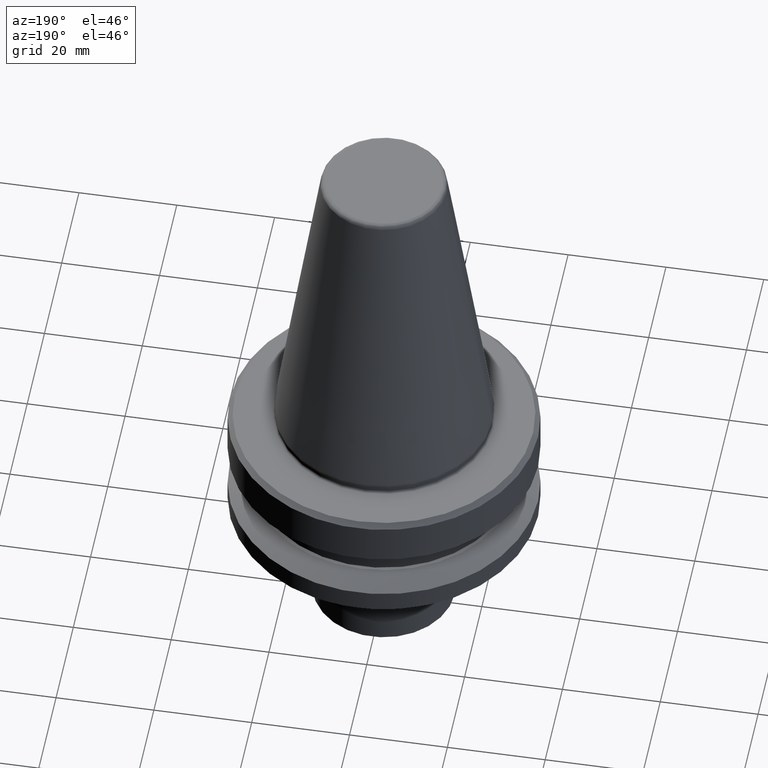
[diagram: clean part render]
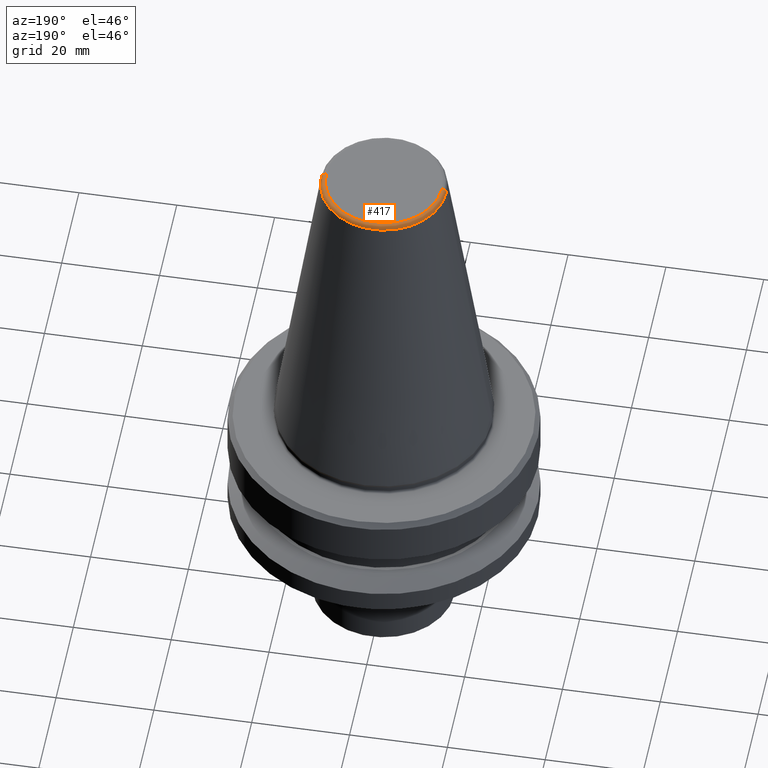
[diagram: same view with one face highlighted and labeled with its STEP entity id]
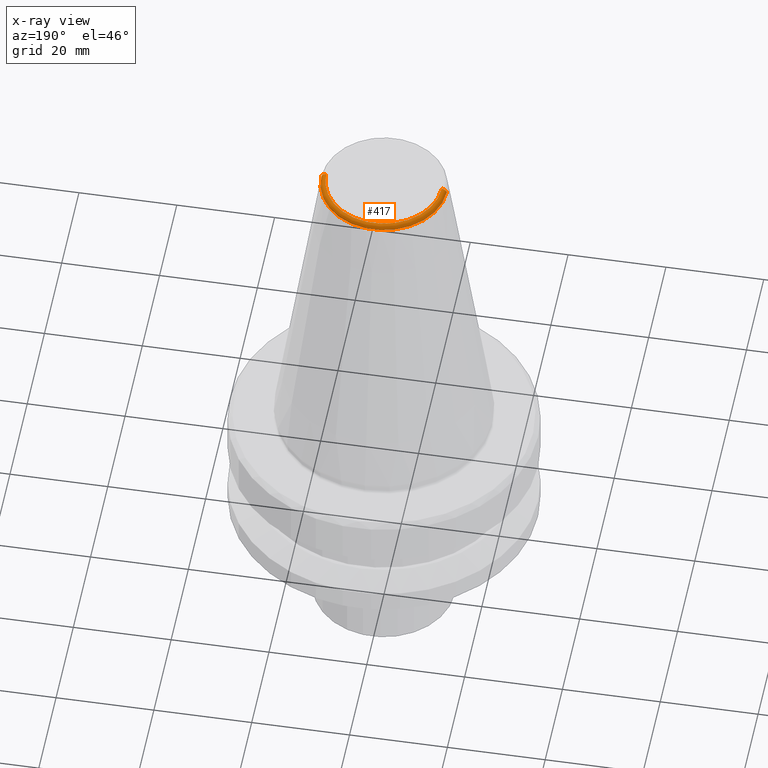
[diagram: x-ray of the same camera — body ghosted, the highlighted face saturated]
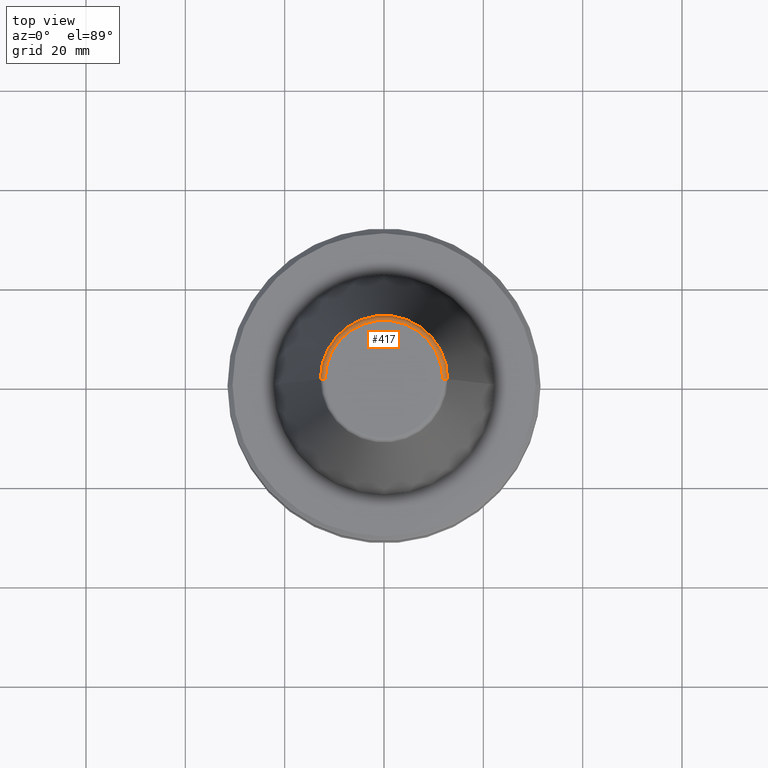
[diagram: same view with one face highlighted and labeled with its STEP entity id]
A machine part, auxiliary view. The second image highlights one B-rep face of the part: STEP entity #417.
The next image is the same camera in x-ray: the body ghosted, the highlighted face saturated — about 0% of this face is hidden behind the body in this view.
A second angle (top view) of the same face is appended — the face is thin or edge-on in the first view.
In plain terms, the highlighted toroidal blend (fillet) surface has major radius 11.8227 mm and minor (blend) radius 1 mm.
Its self-contained STEP definition (entity closure, byte-faithful):
#3 = CIRCLE ( 'NONE', #718, 0.9999999999999696900 ) ;
#7 = ORIENTED_EDGE ( 'NONE', *, *, #208, .F. ) ;
#38 = DIRECTION ( 'NONE',  ( 1.000000000000000000, 0.0000000000000000000, 0.0000000000000000000 ) ) ;
#115 = AXIS2_PLACEMENT_3D ( 'NONE', #852, #970, #38 ) ;
#135 = DIRECTION ( 'NONE',  ( -0.0000000000000000000, -0.0000000000000000000, 1.000000000000000000 ) ) ;
#168 = VERTEX_POINT ( 'NONE', #469 ) ;
#195 = DIRECTION ( 'NONE',  ( 0.0000000000000000000, 0.0000000000000000000, -1.000000000000000000 ) ) ;
#208 = EDGE_CURVE ( 'NONE', #974, #168, #3, .T. ) ;
#217 = EDGE_LOOP ( 'NONE', ( #554, #943, #872, #7 ) ) ;
#252 = VERTEX_POINT ( 'NONE', #333 ) ;
#333 = CARTESIAN_POINT ( 'NONE',  ( -12.81220206925736900, 0.0000000000000000000, -0.8556918111122247000 ) ) ;
#359 = DIRECTION ( 'NONE',  ( 0.0000000000000000000, -1.000000000000000000, 0.0000000000000000000 ) ) ;
#409 = CARTESIAN_POINT ( 'NONE',  ( 12.81220206925736900, 2.145409868259749100E-015, -0.8556918111122247000 ) ) ;
#416 = CIRCLE ( 'NONE', #848, 0.9999999999999696900 ) ;
#417 = ADVANCED_FACE ( 'NONE', ( #730 ), #891, .T. ) ;
#418 = EDGE_CURVE ( 'NONE', #974, #252, #677, .T. ) ;
#469 = CARTESIAN_POINT ( 'NONE',  ( 11.82266927716813000, 0.0000000000000000000, -4.440892098500626200E-013 ) ) ;
#554 = ORIENTED_EDGE ( 'NONE', *, *, #418, .T. ) ;
#574 = DIRECTION ( 'NONE',  ( -1.000000000000000000, 1.224646799147353000E-016, 0.0000000000000000000 ) ) ;
#587 = CARTESIAN_POINT ( 'NONE',  ( -11.82266927716813000, 1.508450817090336800E-015, -4.440892098500626200E-013 ) ) ;
#617 = CIRCLE ( 'NONE', #826, 11.82266927716813000 ) ;
#624 = CARTESIAN_POINT ( 'NONE',  ( 0.0000000000000000000, 0.0000000000000000000, -4.440892098500626200E-013 ) ) ;
#643 = CARTESIAN_POINT ( 'NONE',  ( -11.82266927716813000, 1.447859408766170200E-015, -1.000000000000334000 ) ) ;
#654 = CARTESIAN_POINT ( 'NONE',  ( 0.0000000000000000000, 0.0000000000000000000, -1.000000000000334000 ) ) ;
#657 = VERTEX_POINT ( 'NONE', #587 ) ;
#677 = CIRCLE ( 'NONE', #115, 12.81220206925736900 ) ;
#702 = DIRECTION ( 'NONE',  ( 1.000000000000000000, 0.0000000000000000000, 0.0000000000000000000 ) ) ;
#718 = AXIS2_PLACEMENT_3D ( 'NONE', #755, #359, #195 ) ;
#730 = FACE_OUTER_BOUND ( 'NONE', #217, .T. ) ;
#755 = CARTESIAN_POINT ( 'NONE',  ( 11.82266927716813000, 0.0000000000000000000, -1.000000000000334000 ) ) ;
#826 = AXIS2_PLACEMENT_3D ( 'NONE', #624, #135, #702 ) ;
#842 = EDGE_CURVE ( 'NONE', #252, #657, #416, .T. ) ;
#848 = AXIS2_PLACEMENT_3D ( 'NONE', #643, #989, #574 ) ;
#852 = CARTESIAN_POINT ( 'NONE',  ( 0.0000000000000000000, 0.0000000000000000000, -0.8556918111122247000 ) ) ;
#872 = ORIENTED_EDGE ( 'NONE', *, *, #1039, .F. ) ;
#891 = TOROIDAL_SURFACE ( 'NONE', #1000, 11.82266927716813000, 0.9999999999999696900 ) ;
#899 = DIRECTION ( 'NONE',  ( 1.000000000000000000, 0.0000000000000000000, 0.0000000000000000000 ) ) ;
#943 = ORIENTED_EDGE ( 'NONE', *, *, #842, .T. ) ;
#970 = DIRECTION ( 'NONE',  ( -0.0000000000000000000, -0.0000000000000000000, 1.000000000000000000 ) ) ;
#974 = VERTEX_POINT ( 'NONE', #409 ) ;
#989 = DIRECTION ( 'NONE',  ( 1.224646799147353200E-016, 1.000000000000000000, 0.0000000000000000000 ) ) ;
#1000 = AXIS2_PLACEMENT_3D ( 'NONE', #654, #1013, #899 ) ;
#1013 = DIRECTION ( 'NONE',  ( -0.0000000000000000000, -0.0000000000000000000, 1.000000000000000000 ) ) ;
#1039 = EDGE_CURVE ( 'NONE', #168, #657, #617, .T. ) ;